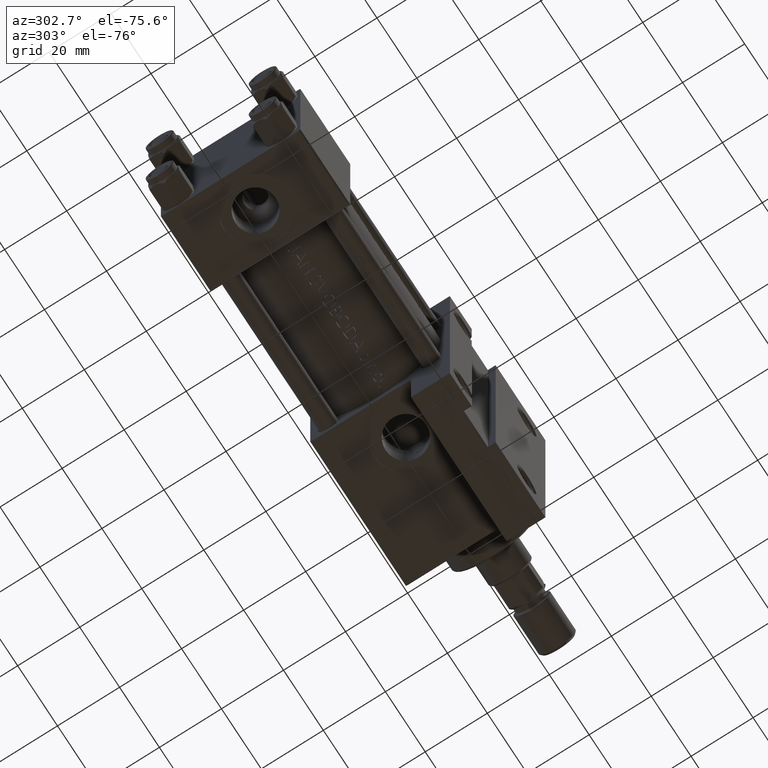
[diagram: clean part render]
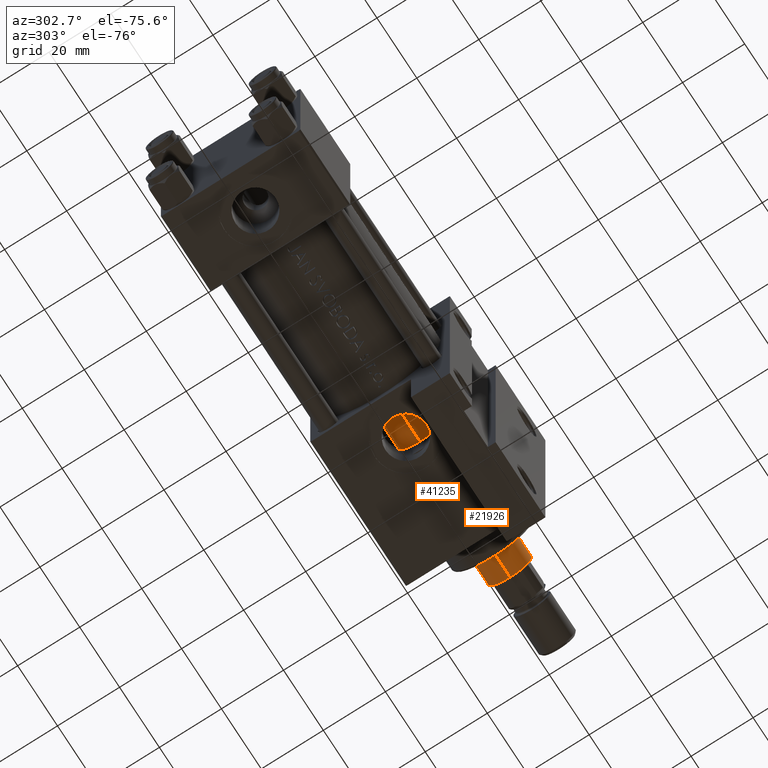
[diagram: same view with one multi-face feature highlighted, each face labeled with its STEP entity id]
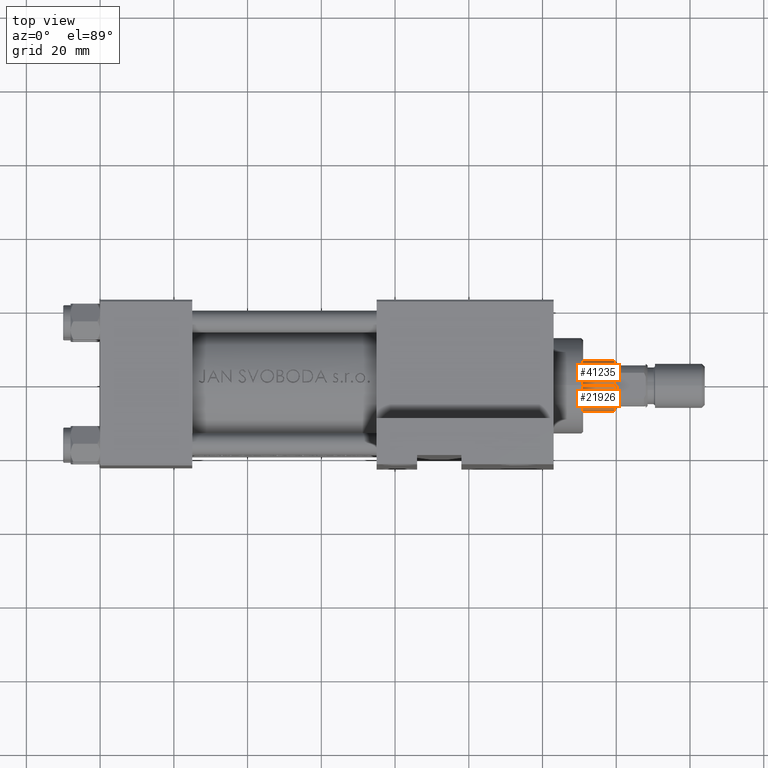
[diagram: same view with one multi-face feature highlighted, each face labeled with its STEP entity id]
A machine part, auxiliary view. The highlighted faces form ONE feature: a constant-radius fillet chain: 2 tangent blend faces with common blend radius 7 mm. The faces share edges in the B-rep.
A second angle (top view) of the same feature is appended — it is thin or edge-on in the first view.
Their STEP definitions:
[1] entity #21926 (Cylinder):
#2737 = VECTOR ( 'NONE', #44010, 1000.000000000000000 ) ;
#3668 = CARTESIAN_POINT ( 'NONE',  ( 0.000000000000000000, 0.000000000000000000, 115.0000000000000000 ) ) ;
#5604 = CIRCLE ( 'NONE', #11060, 7.000000000000000000 ) ;
#5637 = VERTEX_POINT ( 'NONE', #5814 ) ;
#5814 = CARTESIAN_POINT ( 'NONE',  ( -7.000000000000000000, 0.000000000000000000, 114.4999999999999858 ) ) ;
#5841 = CARTESIAN_POINT ( 'NONE',  ( 7.000000000000000000, 8.572527594031473190E-16, 30.00000000000000000 ) ) ;
#7358 = ORIENTED_EDGE ( 'NONE', *, *, #32743, .T. ) ;
#8928 = AXIS2_PLACEMENT_3D ( 'NONE', #18164, #33268, #14501 ) ;
#8959 = ORIENTED_EDGE ( 'NONE', *, *, #31759, .T. ) ;
#10571 = ORIENTED_EDGE ( 'NONE', *, *, #45982, .T. ) ;
#11060 = AXIS2_PLACEMENT_3D ( 'NONE', #38398, #46170, #45917 ) ;
#14453 = VERTEX_POINT ( 'NONE', #5841 ) ;
#14501 = DIRECTION ( 'NONE',  ( 1.000000000000000000, 0.000000000000000000, 0.000000000000000000 ) ) ;
#15555 = FACE_OUTER_BOUND ( 'NONE', #25505, .T. ) ;
#17436 = LINE ( 'NONE', #43746, #39842 ) ;
#18164 = CARTESIAN_POINT ( 'NONE',  ( 0.000000000000000000, 0.000000000000000000, 114.4999999999999858 ) ) ;
#21601 = LINE ( 'NONE', #25990, #2737 ) ;
#21926 = ADVANCED_FACE ( 'NONE', ( #15555 ), #40711, .T. ) ;
#25505 = EDGE_LOOP ( 'NONE', ( #8959, #7358, #10571, #39489 ) ) ;
#25990 = CARTESIAN_POINT ( 'NONE',  ( 7.000000000000000000, 8.572527594031473190E-16, 115.0000000000000000 ) ) ;
#26801 = CIRCLE ( 'NONE', #8928, 7.000000000000000000 ) ;
#30426 = DIRECTION ( 'NONE',  ( -0.000000000000000000, -0.000000000000000000, -1.000000000000000000 ) ) ;
#31279 = AXIS2_PLACEMENT_3D ( 'NONE', #3668, #30426, #45293 ) ;
#31759 = EDGE_CURVE ( 'NONE', #5637, #43681, #26801, .T. ) ;
#32743 = EDGE_CURVE ( 'NONE', #43681, #14453, #21601, .T. ) ;
#33268 = DIRECTION ( 'NONE',  ( 0.000000000000000000, 0.000000000000000000, -1.000000000000000000 ) ) ;
#35061 = CARTESIAN_POINT ( 'NONE',  ( 7.000000000000000000, 8.572527594031473190E-16, 114.4999999999999858 ) ) ;
#35212 = CARTESIAN_POINT ( 'NONE',  ( -7.000000000000000000, 0.000000000000000000, 30.00000000000000000 ) ) ;
#38398 = CARTESIAN_POINT ( 'NONE',  ( 0.000000000000000000, 0.000000000000000000, 30.00000000000000000 ) ) ;
#39489 = ORIENTED_EDGE ( 'NONE', *, *, #44106, .F. ) ;
#39842 = VECTOR ( 'NONE', #43042, 1000.000000000000000 ) ;
#40711 = CYLINDRICAL_SURFACE ( 'NONE', #31279, 7.000000000000000000 ) ;
#41793 = VERTEX_POINT ( 'NONE', #35212 ) ;
#43042 = DIRECTION ( 'NONE',  ( -0.000000000000000000, -0.000000000000000000, -1.000000000000000000 ) ) ;
#43681 = VERTEX_POINT ( 'NONE', #35061 ) ;
#43746 = CARTESIAN_POINT ( 'NONE',  ( -7.000000000000000000, 0.000000000000000000, 115.0000000000000000 ) ) ;
#44010 = DIRECTION ( 'NONE',  ( -0.000000000000000000, -0.000000000000000000, -1.000000000000000000 ) ) ;
#44106 = EDGE_CURVE ( 'NONE', #5637, #41793, #17436, .T. ) ;
#45293 = DIRECTION ( 'NONE',  ( -1.000000000000000000, 0.000000000000000000, 0.000000000000000000 ) ) ;
#45917 = DIRECTION ( 'NONE',  ( 1.000000000000000000, 0.000000000000000000, 0.000000000000000000 ) ) ;
#45982 = EDGE_CURVE ( 'NONE', #14453, #41793, #5604, .T. ) ;
#46170 = DIRECTION ( 'NONE',  ( 0.000000000000000000, 0.000000000000000000, 1.000000000000000000 ) ) ;
[2] entity #41235 (Cylinder):
#250 = ORIENTED_EDGE ( 'NONE', *, *, #32743, .F. ) ;
#2737 = VECTOR ( 'NONE', #44010, 1000.000000000000000 ) ;
#3533 = AXIS2_PLACEMENT_3D ( 'NONE', #39670, #9217, #32098 ) ;
#5614 = EDGE_CURVE ( 'NONE', #43681, #5637, #29178, .T. ) ;
#5637 = VERTEX_POINT ( 'NONE', #5814 ) ;
#5814 = CARTESIAN_POINT ( 'NONE',  ( -7.000000000000000000, 0.000000000000000000, 114.4999999999999858 ) ) ;
#5841 = CARTESIAN_POINT ( 'NONE',  ( 7.000000000000000000, 8.572527594031473190E-16, 30.00000000000000000 ) ) ;
#9217 = DIRECTION ( 'NONE',  ( 0.000000000000000000, 0.000000000000000000, -1.000000000000000000 ) ) ;
#11120 = DIRECTION ( 'NONE',  ( 1.000000000000000000, 0.000000000000000000, 0.000000000000000000 ) ) ;
#11126 = EDGE_CURVE ( 'NONE', #41793, #14453, #35988, .T. ) ;
#14453 = VERTEX_POINT ( 'NONE', #5841 ) ;
#17436 = LINE ( 'NONE', #43746, #39842 ) ;
#21058 = ORIENTED_EDGE ( 'NONE', *, *, #44106, .T. ) ;
#21212 = AXIS2_PLACEMENT_3D ( 'NONE', #25268, #37439, #11120 ) ;
#21601 = LINE ( 'NONE', #25990, #2737 ) ;
#24138 = AXIS2_PLACEMENT_3D ( 'NONE', #39033, #31470, #46331 ) ;
#24156 = CYLINDRICAL_SURFACE ( 'NONE', #24138, 7.000000000000000000 ) ;
#25268 = CARTESIAN_POINT ( 'NONE',  ( 0.000000000000000000, 0.000000000000000000, 30.00000000000000000 ) ) ;
#25990 = CARTESIAN_POINT ( 'NONE',  ( 7.000000000000000000, 8.572527594031473190E-16, 115.0000000000000000 ) ) ;
#29178 = CIRCLE ( 'NONE', #3533, 7.000000000000000000 ) ;
#30454 = ORIENTED_EDGE ( 'NONE', *, *, #11126, .T. ) ;
#31470 = DIRECTION ( 'NONE',  ( -0.000000000000000000, -0.000000000000000000, -1.000000000000000000 ) ) ;
#32098 = DIRECTION ( 'NONE',  ( 1.000000000000000000, 0.000000000000000000, 0.000000000000000000 ) ) ;
#32351 = ORIENTED_EDGE ( 'NONE', *, *, #5614, .T. ) ;
#32743 = EDGE_CURVE ( 'NONE', #43681, #14453, #21601, .T. ) ;
#34242 = EDGE_LOOP ( 'NONE', ( #250, #32351, #21058, #30454 ) ) ;
#35061 = CARTESIAN_POINT ( 'NONE',  ( 7.000000000000000000, 8.572527594031473190E-16, 114.4999999999999858 ) ) ;
#35212 = CARTESIAN_POINT ( 'NONE',  ( -7.000000000000000000, 0.000000000000000000, 30.00000000000000000 ) ) ;
#35988 = CIRCLE ( 'NONE', #21212, 7.000000000000000000 ) ;
#37439 = DIRECTION ( 'NONE',  ( 0.000000000000000000, 0.000000000000000000, 1.000000000000000000 ) ) ;
#39033 = CARTESIAN_POINT ( 'NONE',  ( 0.000000000000000000, 0.000000000000000000, 115.0000000000000000 ) ) ;
#39670 = CARTESIAN_POINT ( 'NONE',  ( 0.000000000000000000, 0.000000000000000000, 114.4999999999999858 ) ) ;
#39842 = VECTOR ( 'NONE', #43042, 1000.000000000000000 ) ;
#41235 = ADVANCED_FACE ( 'NONE', ( #42449 ), #24156, .T. ) ;
#41793 = VERTEX_POINT ( 'NONE', #35212 ) ;
#42449 = FACE_OUTER_BOUND ( 'NONE', #34242, .T. ) ;
#43042 = DIRECTION ( 'NONE',  ( -0.000000000000000000, -0.000000000000000000, -1.000000000000000000 ) ) ;
#43681 = VERTEX_POINT ( 'NONE', #35061 ) ;
#43746 = CARTESIAN_POINT ( 'NONE',  ( -7.000000000000000000, 0.000000000000000000, 115.0000000000000000 ) ) ;
#44010 = DIRECTION ( 'NONE',  ( -0.000000000000000000, -0.000000000000000000, -1.000000000000000000 ) ) ;
#44106 = EDGE_CURVE ( 'NONE', #5637, #41793, #17436, .T. ) ;
#46331 = DIRECTION ( 'NONE',  ( -1.000000000000000000, 0.000000000000000000, 0.000000000000000000 ) ) ;